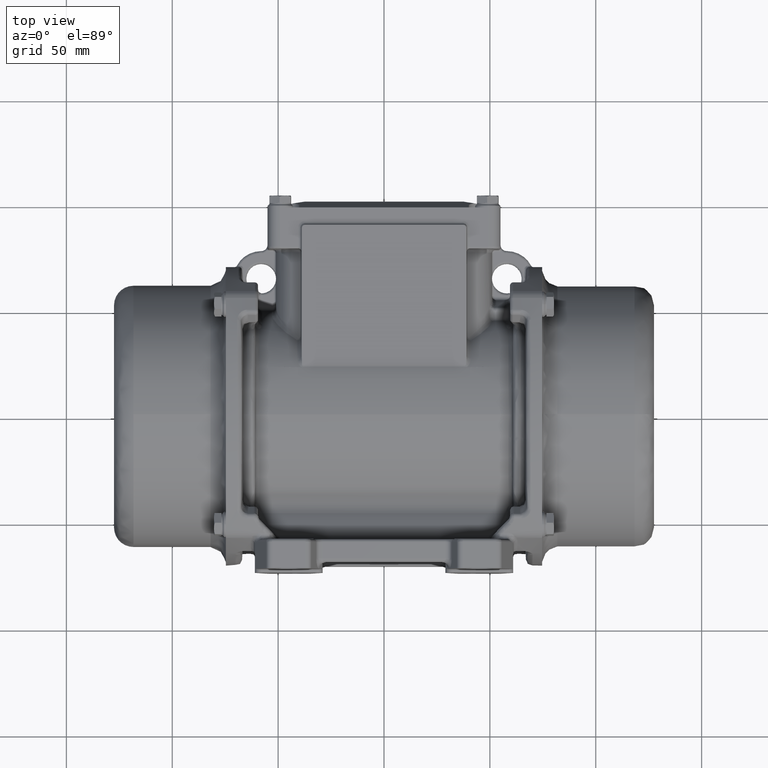
[diagram: clean part render]
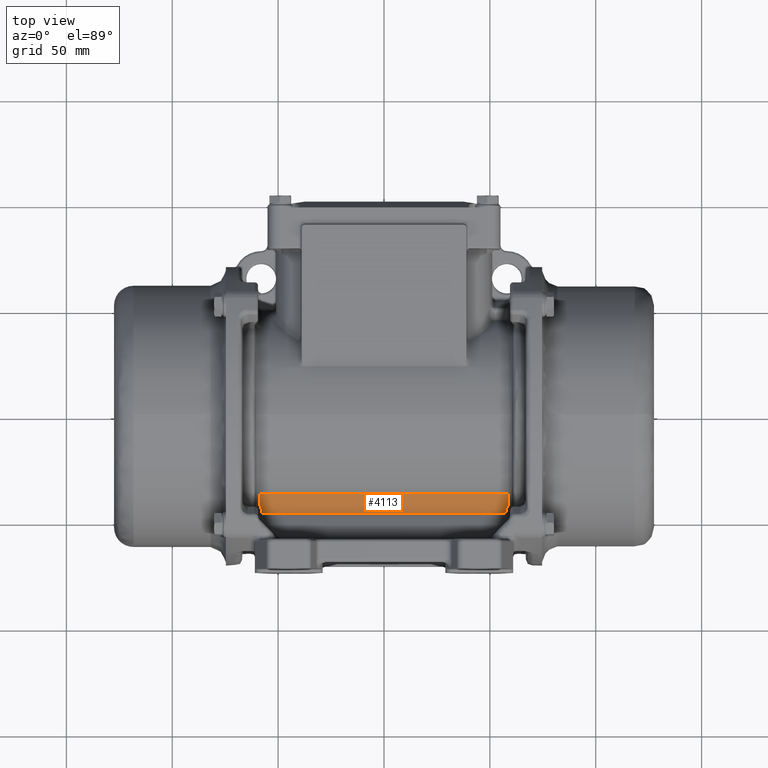
[diagram: same view with one face highlighted and labeled with its STEP entity id]
A machine part, top view. The second image highlights one B-rep face of the part: STEP entity #4113.
In plain terms, the highlighted cylindrical surface (edge-blend (fillet) strip) has radius 7 mm, axis along (-1, -0, -0).
Its self-contained STEP definition (entity closure, byte-faithful):
#110 = ORIENTED_EDGE ( 'NONE', *, *, #11399, .T. ) ;
#4113 = ADVANCED_FACE ( 'NONE', ( #44820 ), #53537, .F. ) ;
#4266 = CARTESIAN_POINT ( 'NONE',  ( -58.81821290733774500, -39.21321053177269500, 31.90467788307488900 ) ) ;
#5090 = CARTESIAN_POINT ( 'NONE',  ( -58.67639032848173700, -42.78500782888845300, 31.19103755259059300 ) ) ;
#6145 = CARTESIAN_POINT ( 'NONE',  ( 57.84134136362915500, -44.49957065738637900, 31.52509806222270700 ) ) ;
#8923 = B_SPLINE_CURVE_WITH_KNOTS ( 'NONE', 3,
 ( #30524, #24162, #11270, #47935, #23599, #6145, #72372, #54160, #67014, #30009, #48737, #42793 ),
 .UNSPECIFIED., .F., .F.,
 ( 4, 2, 2, 2, 2, 4 ),
 ( 0.0000000000000000000, 0.2499999999999999700, 0.4999999999999999400, 0.6249999999999998900, 0.7500000000000000000, 1.000000000000000000 ),
 .UNSPECIFIED. ) ;
#9394 = CARTESIAN_POINT ( 'NONE',  ( -58.83584054757812300, -40.31929473968902800, 31.45628842961257400 ) ) ;
#10006 = CARTESIAN_POINT ( 'NONE',  ( -58.80162038658508500, -37.12561594097208200, 33.49162045950358600 ) ) ;
#10013 = VERTEX_POINT ( 'NONE', #10006 ) ;
#11265 = CARTESIAN_POINT ( 'NONE',  ( -58.48743832565389100, -43.06698740893698100, 31.21332161035513100 ) ) ;
#11270 = CARTESIAN_POINT ( 'NONE',  ( 58.48965191891227300, -43.06343078501841100, 31.21294149212416300 ) ) ;
#11399 = EDGE_CURVE ( 'NONE', #27822, #41740, #13313, .T. ) ;
#11638 = CARTESIAN_POINT ( 'NONE',  ( -84.50000000000000000, -42.32320217270815700, 38.18044732383409500 ) ) ;
#12857 = EDGE_CURVE ( 'NONE', #10013, #69941, #73328, .T. ) ;
#13313 = B_SPLINE_CURVE_WITH_KNOTS ( 'NONE', 3,
 ( #23181, #77873, #17299, #48056 ),
 .UNSPECIFIED., .F., .F.,
 ( 4, 4 ),
 ( 0.0000000000000000000, 1.000000000000000000 ),
 .UNSPECIFIED. ) ;
#14214 = CARTESIAN_POINT ( 'NONE',  ( -58.87663411885514400, -42.21390773437768500, 31.18130060971601100 ) ) ;
#14517 = CARTESIAN_POINT ( 'NONE',  ( 58.88290103470046000, -42.42650034844469100, 31.18044448095694000 ) ) ;
#16310 = CARTESIAN_POINT ( 'NONE',  ( 58.81821290733776700, -39.21321053177245400, 31.90467788307501400 ) ) ;
#17299 = CARTESIAN_POINT ( 'NONE',  ( -58.88290103469906000, -42.42650034841484100, 31.18044448095581700 ) ) ;
#17385 = CARTESIAN_POINT ( 'NONE',  ( 58.85441626373279400, -41.25499727527619600, 31.24583153549016900 ) ) ;
#17980 = VERTEX_POINT ( 'NONE', #77105 ) ;
#20463 = EDGE_CURVE ( 'NONE', #27822, #10013, #55987, .T. ) ;
#20916 = ORIENTED_EDGE ( 'NONE', *, *, #41187, .F. ) ;
#22754 = CARTESIAN_POINT ( 'NONE',  ( -58.81531623295125400, -38.99796752066134800, 32.01597194447999300 ) ) ;
#23181 = CARTESIAN_POINT ( 'NONE',  ( -58.87663411885514400, -42.21390773437768500, 31.18130060971601100 ) ) ;
#23593 = CARTESIAN_POINT ( 'NONE',  ( -57.51194644921326200, -46.33823722716548600, 32.44638301381115000 ) ) ;
#23599 = CARTESIAN_POINT ( 'NONE',  ( 58.01397570238518900, -43.99973299909673600, 31.37528320467457400 ) ) ;
#24162 = CARTESIAN_POINT ( 'NONE',  ( 58.67734212897423200, -42.78385864976546300, 31.19100359699038100 ) ) ;
#26162 = ORIENTED_EDGE ( 'NONE', *, *, #64404, .F. ) ;
#26334 = CARTESIAN_POINT ( 'NONE',  ( 57.51194644921326200, -46.33823722716548600, 32.44638301381115000 ) ) ;
#26711 = ORIENTED_EDGE ( 'NONE', *, *, #49102, .T. ) ;
#27166 = DIRECTION ( 'NONE',  ( -1.000000000000000000, -0.0000000000000000000, -0.0000000000000000000 ) ) ;
#27822 = VERTEX_POINT ( 'NONE', #59767 ) ;
#28795 = ORIENTED_EDGE ( 'NONE', *, *, #48534, .F. ) ;
#29160 = CARTESIAN_POINT ( 'NONE',  ( 58.86515675837512200, -41.74012371432019800, 31.18869893418000700 ) ) ;
#29213 = CARTESIAN_POINT ( 'NONE',  ( -57.78210774843035600, -44.67188170998935700, 31.57700431212059300 ) ) ;
#29434 = CARTESIAN_POINT ( 'NONE',  ( 58.81035541491780800, -38.58236246333263600, 32.25895591857182900 ) ) ;
#29474 = CARTESIAN_POINT ( 'NONE',  ( -58.15635982622639200, -43.67346208586572900, 31.30506694512256200 ) ) ;
#30009 = CARTESIAN_POINT ( 'NONE',  ( 57.56717270469535900, -45.69002905784627400, 32.03174277886253000 ) ) ;
#30524 = CARTESIAN_POINT ( 'NONE',  ( 58.88764298929885400, -42.52994584490136300, 31.18350105749704000 ) ) ;
#30749 = CARTESIAN_POINT ( 'NONE',  ( -57.51194644921326200, -46.33823722716548600, 32.44638301381115000 ) ) ;
#31965 = CARTESIAN_POINT ( 'NONE',  ( 58.80162038658510700, -37.12561594097208200, 33.49162045950358600 ) ) ;
#33637 = VERTEX_POINT ( 'NONE', #26334 ) ;
#33673 = CARTESIAN_POINT ( 'NONE',  ( -58.82793672488763500, -39.86735474676316200, 31.60791860639961800 ) ) ;
#33721 = CARTESIAN_POINT ( 'NONE',  ( 58.87663411885517200, -42.21390773437764200, 31.18130060971600400 ) ) ;
#34199 = CARTESIAN_POINT ( 'NONE',  ( -58.85441626373276600, -41.25499727527736100, 31.24583153548991300 ) ) ;
#34465 = CARTESIAN_POINT ( 'NONE',  ( -58.80331751881706700, -37.80473610283850400, 32.81285078618466900 ) ) ;
#34745 = ORIENTED_EDGE ( 'NONE', *, *, #20463, .F. ) ;
#35844 = CARTESIAN_POINT ( 'NONE',  ( -58.88764298930141200, -42.52994584492287800, 31.18350105749767900 ) ) ;
#36102 = CARTESIAN_POINT ( 'NONE',  ( -57.69416729165591600, -45.01145939851186000, 31.70615490248344400 ) ) ;
#36805 = CARTESIAN_POINT ( 'NONE',  ( -58.88764298930141200, -42.52994584492287800, 31.18350105749767900 ) ) ;
#37436 = B_SPLINE_CURVE_WITH_KNOTS ( 'NONE', 3,
 ( #23593, #72628, #66476, #36102, #29213, #60046, #29474, #11265, #5090, #35844 ),
 .UNSPECIFIED., .F., .F.,
 ( 4, 2, 2, 2, 4 ),
 ( 0.0000000000000000000, 0.2500000000000000000, 0.5000000000000000000, 0.7499999999999998900, 1.000000000000000000 ),
 .UNSPECIFIED. ) ;
#38754 = CARTESIAN_POINT ( 'NONE',  ( -58.86515675837498000, -41.74012371431941700, 31.18869893418001400 ) ) ;
#41187 = EDGE_CURVE ( 'NONE', #67698, #41740, #37436, .T. ) ;
#41671 = CARTESIAN_POINT ( 'NONE',  ( 58.80331751881710300, -37.80473610283980400, 32.81285078618371600 ) ) ;
#41740 = VERTEX_POINT ( 'NONE', #36805 ) ;
#42793 = CARTESIAN_POINT ( 'NONE',  ( 57.51194644921326200, -46.33823722716548600, 32.44638301381115000 ) ) ;
#43992 = ORIENTED_EDGE ( 'NONE', *, *, #12857, .F. ) ;
#44220 = B_SPLINE_CURVE_WITH_KNOTS ( 'NONE', 3,
 ( #53831, #53032, #41671, #66159, #29434, #59724, #16310, #65889, #47880, #17385, #29160, #60268 ),
 .UNSPECIFIED., .F., .F.,
 ( 4, 2, 2, 2, 2, 4 ),
 ( 0.0000000000000000000, 0.2499999999999997800, 0.3749999999999996700, 0.4999999999999995600, 0.7499999999999993300, 1.000000000000000000 ),
 .UNSPECIFIED. ) ;
#44622 = ORIENTED_EDGE ( 'NONE', *, *, #50958, .F. ) ;
#44820 = FACE_OUTER_BOUND ( 'NONE', #54929, .T. ) ;
#46293 = VECTOR ( 'NONE', #27166, 1000.000000000000000 ) ;
#46980 = VERTEX_POINT ( 'NONE', #77340 ) ;
#47880 = CARTESIAN_POINT ( 'NONE',  ( 58.83584054757815100, -40.31929473969015000, 31.45628842961233200 ) ) ;
#47935 = CARTESIAN_POINT ( 'NONE',  ( 58.15797425475208400, -43.67001220139430000, 31.30438895729697200 ) ) ;
#48056 = CARTESIAN_POINT ( 'NONE',  ( -58.88764298930141200, -42.52994584492287800, 31.18350105749767900 ) ) ;
#48534 = EDGE_CURVE ( 'NONE', #69941, #17980, #44220, .T. ) ;
#48737 = CARTESIAN_POINT ( 'NONE',  ( 57.52954027496753800, -46.02025011296837700, 32.22372603939679400 ) ) ;
#49102 = EDGE_CURVE ( 'NONE', #46980, #17980, #64911, .T. ) ;
#50958 = EDGE_CURVE ( 'NONE', #46980, #33637, #8923, .T. ) ;
#51808 = CARTESIAN_POINT ( 'NONE',  ( -84.50000000000000000, -46.33823722716548600, 32.44638301381115800 ) ) ;
#53032 = CARTESIAN_POINT ( 'NONE',  ( 58.80162038669896400, -37.44957435424962700, 33.13251106237149200 ) ) ;
#53537 = CYLINDRICAL_SURFACE ( 'NONE', #64725, 6.999999999999999100 ) ;
#53831 = CARTESIAN_POINT ( 'NONE',  ( 58.80162038658510700, -37.12561594097208200, 33.49162045950358600 ) ) ;
#54054 = LINE ( 'NONE', #51808, #46293 ) ;
#54160 = CARTESIAN_POINT ( 'NONE',  ( 57.70117681320475400, -45.00779910405708500, 31.71313931181315800 ) ) ;
#54525 = DIRECTION ( 'NONE',  ( -1.000000000000000000, -0.0000000000000000000, -0.0000000000000000000 ) ) ;
#54929 = EDGE_LOOP ( 'NONE', ( #20916, #26162, #44622, #26711, #28795, #43992, #34745, #110 ) ) ;
#55987 = B_SPLINE_CURVE_WITH_KNOTS ( 'NONE', 3,
 ( #14214, #38754, #34199, #9394, #33673, #4266, #22754, #71285, #59498, #34465, #71546, #70487 ),
 .UNSPECIFIED., .F., .F.,
 ( 4, 2, 2, 2, 2, 4 ),
 ( 0.0000000000000000000, 0.2500000000000002200, 0.4999999999999995600, 0.6249999999999992200, 0.7499999999999997800, 1.000000000000000000 ),
 .UNSPECIFIED. ) ;
#57440 = CARTESIAN_POINT ( 'NONE',  ( 58.87923141121905200, -42.32111910040814000, 31.17962646192178200 ) ) ;
#58230 = CARTESIAN_POINT ( 'NONE',  ( 58.88764298929885400, -42.52994584490136300, 31.18350105749704000 ) ) ;
#59498 = CARTESIAN_POINT ( 'NONE',  ( -58.80829032902131800, -38.38230330630088400, 32.39026397797732000 ) ) ;
#59724 = CARTESIAN_POINT ( 'NONE',  ( 58.81531623295128200, -38.99796752066133400, 32.01597194448000700 ) ) ;
#59767 = CARTESIAN_POINT ( 'NONE',  ( -58.87663411885514400, -42.21390773437768500, 31.18130060971601100 ) ) ;
#60046 = CARTESIAN_POINT ( 'NONE',  ( -58.01238660981383800, -44.00353668388388700, 31.37616697185394800 ) ) ;
#60268 = CARTESIAN_POINT ( 'NONE',  ( 58.87663411885517200, -42.21390773437764200, 31.18130060971600400 ) ) ;
#62800 = DIRECTION ( 'NONE',  ( 1.000000000000000000, 0.0000000000000000000, 0.0000000000000000000 ) ) ;
#64404 = EDGE_CURVE ( 'NONE', #33637, #67698, #54054, .T. ) ;
#64725 = AXIS2_PLACEMENT_3D ( 'NONE', #11638, #54525, #67616 ) ;
#64911 = B_SPLINE_CURVE_WITH_KNOTS ( 'NONE', 3,
 ( #58230, #14517, #57440, #33721 ),
 .UNSPECIFIED., .F., .F.,
 ( 4, 4 ),
 ( 0.0000000000000000000, 1.000000000000000000 ),
 .UNSPECIFIED. ) ;
#65889 = CARTESIAN_POINT ( 'NONE',  ( 58.82793672488766400, -39.86735474676356000, 31.60791860639943700 ) ) ;
#66159 = CARTESIAN_POINT ( 'NONE',  ( 58.80829032902136100, -38.38230330630016600, 32.39026397797783800 ) ) ;
#66476 = CARTESIAN_POINT ( 'NONE',  ( -57.56659856410408300, -45.69372437424055300, 32.03367830603120600 ) ) ;
#67014 = CARTESIAN_POINT ( 'NONE',  ( 57.66267514880445300, -45.18020187802495300, 31.78724191513805100 ) ) ;
#67616 = DIRECTION ( 'NONE',  ( 0.0000000000000000000, 0.0000000000000000000, 1.000000000000000000 ) ) ;
#67698 = VERTEX_POINT ( 'NONE', #30749 ) ;
#69941 = VERTEX_POINT ( 'NONE', #31965 ) ;
#70487 = CARTESIAN_POINT ( 'NONE',  ( -58.80162038658508500, -37.12561594097208200, 33.49162045950358600 ) ) ;
#71285 = CARTESIAN_POINT ( 'NONE',  ( -58.81035541491778000, -38.58236246333264300, 32.25895591857181400 ) ) ;
#71546 = CARTESIAN_POINT ( 'NONE',  ( -58.80162038669893600, -37.44957435425045800, 33.13251106237057500 ) ) ;
#72372 = CARTESIAN_POINT ( 'NONE',  ( 57.79041918424653800, -44.66804943618926400, 31.58235480272593400 ) ) ;
#72628 = CARTESIAN_POINT ( 'NONE',  ( -57.52930741026094800, -46.02445884247781300, 32.22667302352559200 ) ) ;
#73328 = LINE ( 'NONE', #74869, #79097 ) ;
#74869 = CARTESIAN_POINT ( 'NONE',  ( -84.50000000000000000, -37.12561594097208200, 33.49162045950358600 ) ) ;
#77105 = CARTESIAN_POINT ( 'NONE',  ( 58.87663411885517200, -42.21390773437764200, 31.18130060971600400 ) ) ;
#77340 = CARTESIAN_POINT ( 'NONE',  ( 58.88764298929885400, -42.52994584490136300, 31.18350105749704000 ) ) ;
#77873 = CARTESIAN_POINT ( 'NONE',  ( -58.87923141121741100, -42.32111910037291100, 31.17962646192232900 ) ) ;
#79097 = VECTOR ( 'NONE', #62800, 1000.000000000000000 ) ;